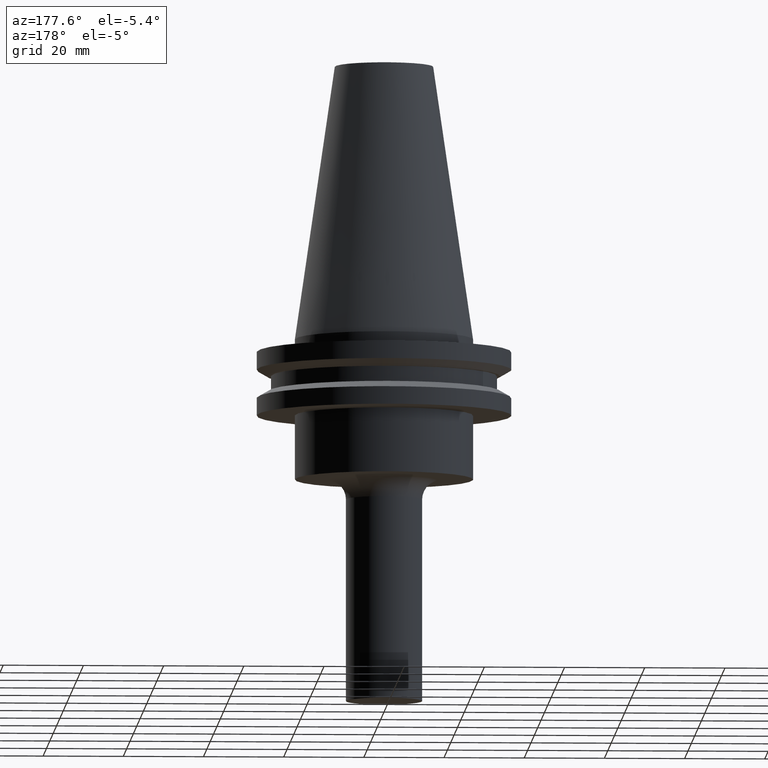
[diagram: clean part render]
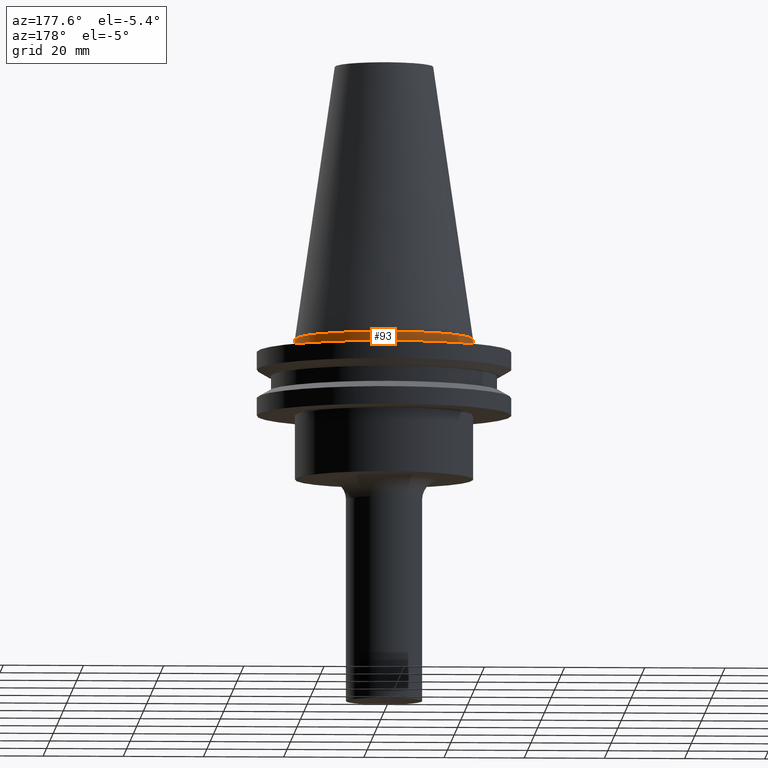
[diagram: same view with one face highlighted and labeled with its STEP entity id]
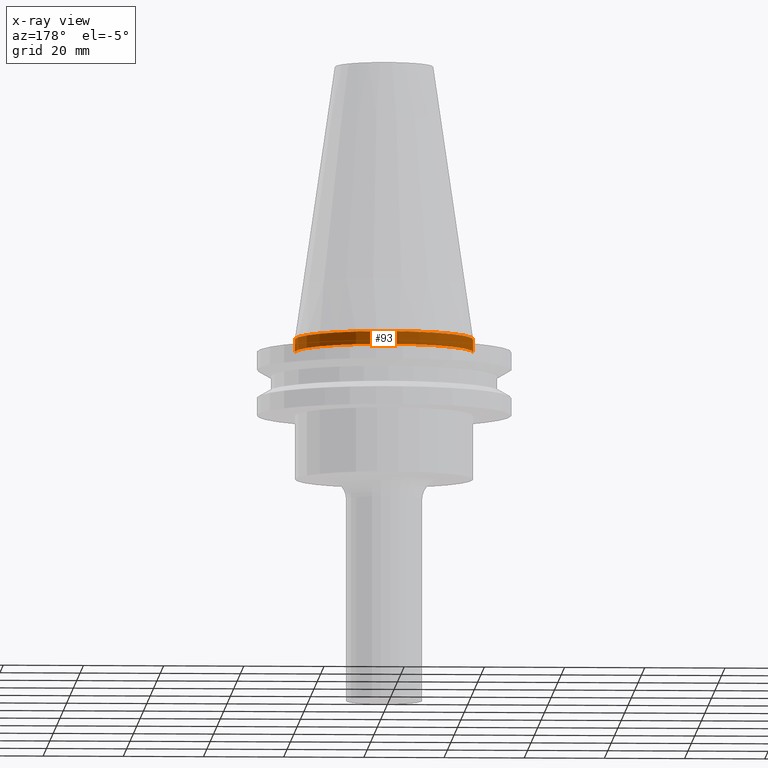
[diagram: x-ray of the same camera — body ghosted, the highlighted face saturated]
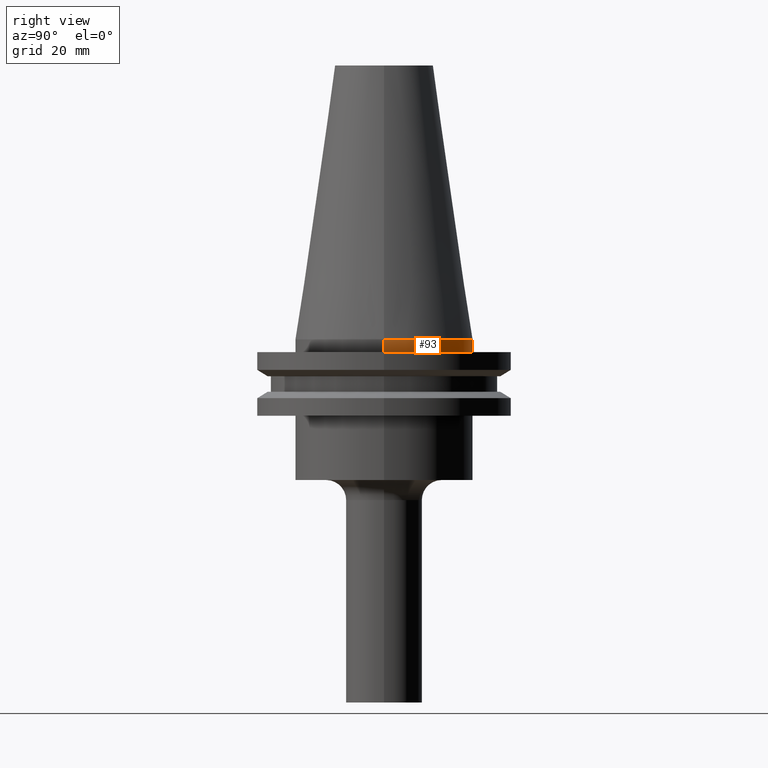
[diagram: same view with one face highlighted and labeled with its STEP entity id]
A machine part, auxiliary view. The second image highlights one B-rep face of the part: STEP entity #93.
The next image is the same camera in x-ray: the body ghosted, the highlighted face saturated — about 1% of this face is hidden behind the body in this view.
A second angle (right view) of the same face is appended — the face is thin or edge-on in the first view.
In plain terms, the highlighted cylindrical surface (partial cylindrical patch) has radius 22.225 mm, axis along (-0, -0, 1).
Its self-contained STEP definition (entity closure, byte-faithful):
#15 = DIRECTION ( 'NONE',  ( 1.000000000000000000, 0.000000000000000000, 0.000000000000000000 ) ) ;
#28 = CIRCLE ( 'NONE', #476, 22.22500000000000142 ) ;
#30 = FACE_OUTER_BOUND ( 'NONE', #717, .T. ) ;
#33 = CYLINDRICAL_SURFACE ( 'NONE', #483, 22.22500000000000142 ) ;
#93 = ADVANCED_FACE ( 'NONE', ( #30 ), #33, .T. ) ;
#101 = VERTEX_POINT ( 'NONE', #334 ) ;
#112 = ORIENTED_EDGE ( 'NONE', *, *, #531, .T. ) ;
#140 = EDGE_CURVE ( 'NONE', #184, #515, #660, .T. ) ;
#146 = DIRECTION ( 'NONE',  ( -0.000000000000000000, -0.000000000000000000, 1.000000000000000000 ) ) ;
#155 = CARTESIAN_POINT ( 'NONE',  ( 22.22500000000000142, 2.721777511104992849E-15, 0.000000000000000000 ) ) ;
#160 = CARTESIAN_POINT ( 'NONE',  ( 0.000000000000000000, 0.000000000000000000, 68.25000000000000000 ) ) ;
#164 = DIRECTION ( 'NONE',  ( -0.000000000000000000, -0.000000000000000000, 1.000000000000000000 ) ) ;
#181 = ORIENTED_EDGE ( 'NONE', *, *, #214, .T. ) ;
#184 = VERTEX_POINT ( 'NONE', #155 ) ;
#214 = EDGE_CURVE ( 'NONE', #101, #515, #532, .T. ) ;
#235 = DIRECTION ( 'NONE',  ( -0.000000000000000000, -0.000000000000000000, 1.000000000000000000 ) ) ;
#296 = LINE ( 'NONE', #443, #742 ) ;
#334 = CARTESIAN_POINT ( 'NONE',  ( -22.22500000000000142, 2.721777511104992849E-15, -3.174999999999997158 ) ) ;
#382 = DIRECTION ( 'NONE',  ( -0.000000000000000000, -0.000000000000000000, 1.000000000000000000 ) ) ;
#443 = CARTESIAN_POINT ( 'NONE',  ( 22.22500000000000142, 0.000000000000000000, 68.25000000000000000 ) ) ;
#447 = AXIS2_PLACEMENT_3D ( 'NONE', #625, #633, #679 ) ;
#476 = AXIS2_PLACEMENT_3D ( 'NONE', #678, #382, #15 ) ;
#483 = AXIS2_PLACEMENT_3D ( 'NONE', #160, #164, #514 ) ;
#491 = CARTESIAN_POINT ( 'NONE',  ( -22.22500000000000142, 0.000000000000000000, 0.000000000000000000 ) ) ;
#514 = DIRECTION ( 'NONE',  ( 1.000000000000000000, 0.000000000000000000, 0.000000000000000000 ) ) ;
#515 = VERTEX_POINT ( 'NONE', #491 ) ;
#531 = EDGE_CURVE ( 'NONE', #655, #101, #28, .T. ) ;
#532 = LINE ( 'NONE', #654, #674 ) ;
#550 = CARTESIAN_POINT ( 'NONE',  ( 22.22500000000000142, 0.000000000000000000, -3.174999999999997158 ) ) ;
#565 = EDGE_CURVE ( 'NONE', #655, #184, #296, .T. ) ;
#583 = ORIENTED_EDGE ( 'NONE', *, *, #565, .F. ) ;
#625 = CARTESIAN_POINT ( 'NONE',  ( 0.000000000000000000, 0.000000000000000000, 0.000000000000000000 ) ) ;
#633 = DIRECTION ( 'NONE',  ( -0.000000000000000000, -0.000000000000000000, 1.000000000000000000 ) ) ;
#654 = CARTESIAN_POINT ( 'NONE',  ( -22.22500000000000142, 2.721777511104992849E-15, 68.25000000000000000 ) ) ;
#655 = VERTEX_POINT ( 'NONE', #550 ) ;
#660 = CIRCLE ( 'NONE', #447, 22.22500000000000142 ) ;
#674 = VECTOR ( 'NONE', #235, 1000.000000000000000 ) ;
#678 = CARTESIAN_POINT ( 'NONE',  ( 0.000000000000000000, 0.000000000000000000, -3.174999999999997158 ) ) ;
#679 = DIRECTION ( 'NONE',  ( 1.000000000000000000, 0.000000000000000000, 0.000000000000000000 ) ) ;
#703 = ORIENTED_EDGE ( 'NONE', *, *, #140, .F. ) ;
#717 = EDGE_LOOP ( 'NONE', ( #112, #181, #703, #583 ) ) ;
#742 = VECTOR ( 'NONE', #146, 1000.000000000000000 ) ;